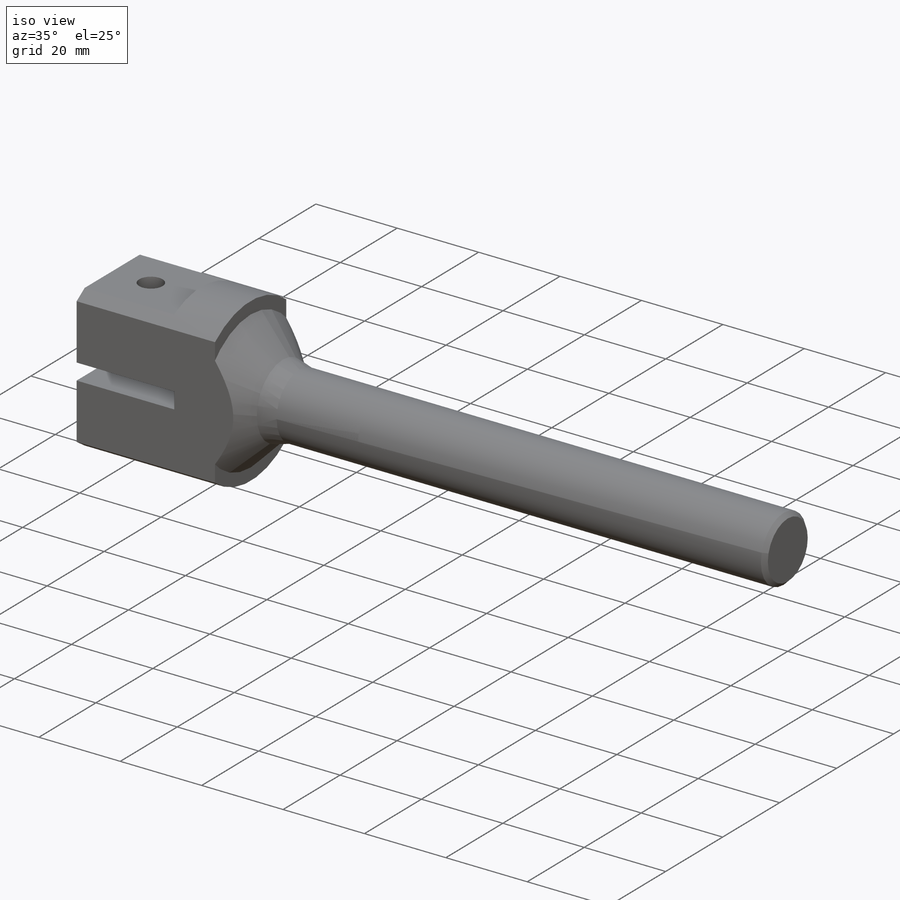
[diagram: iso view]
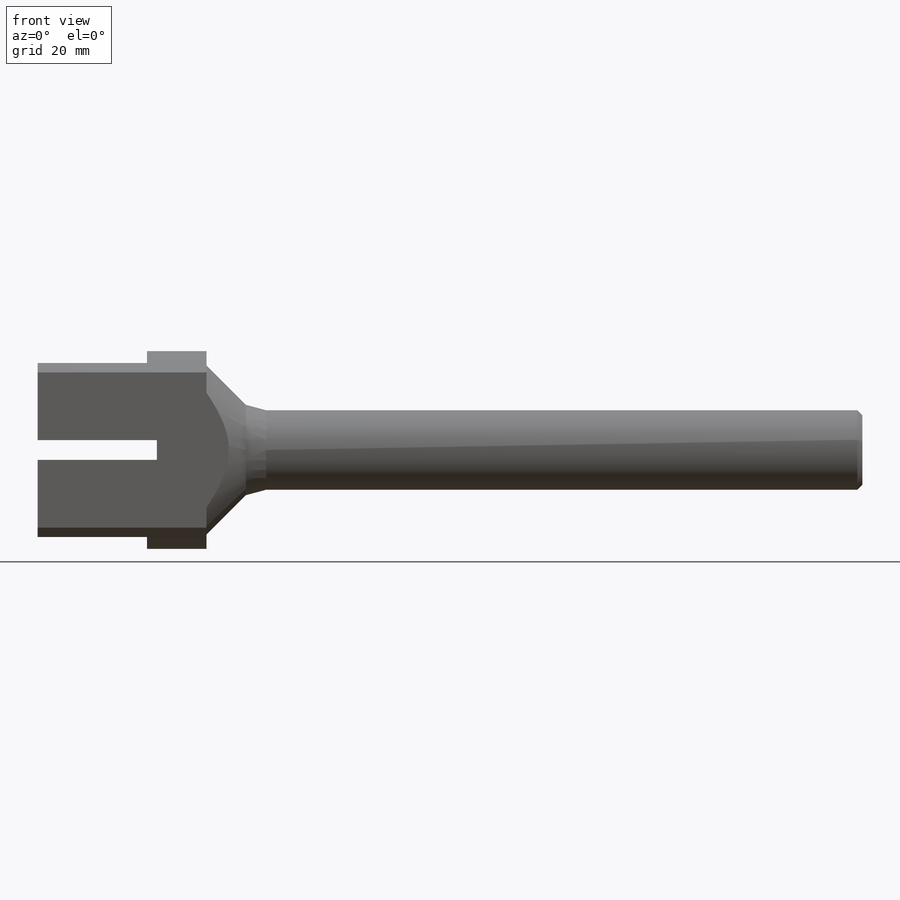
[diagram: front view]
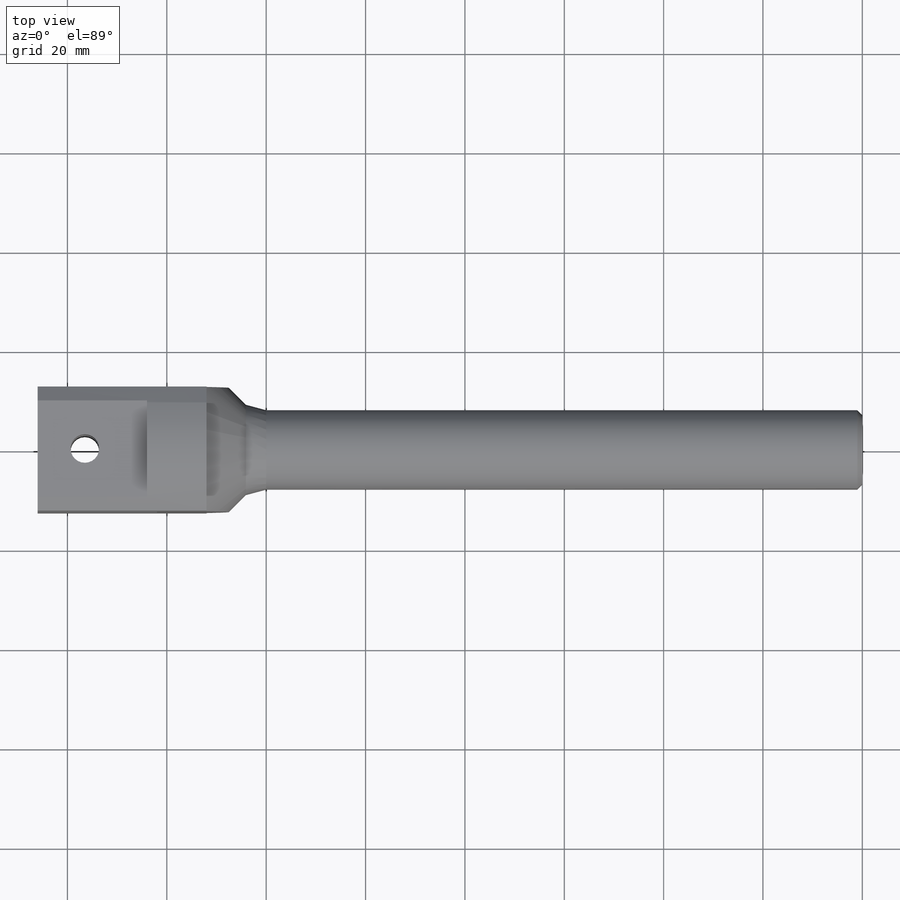
[diagram: top view]
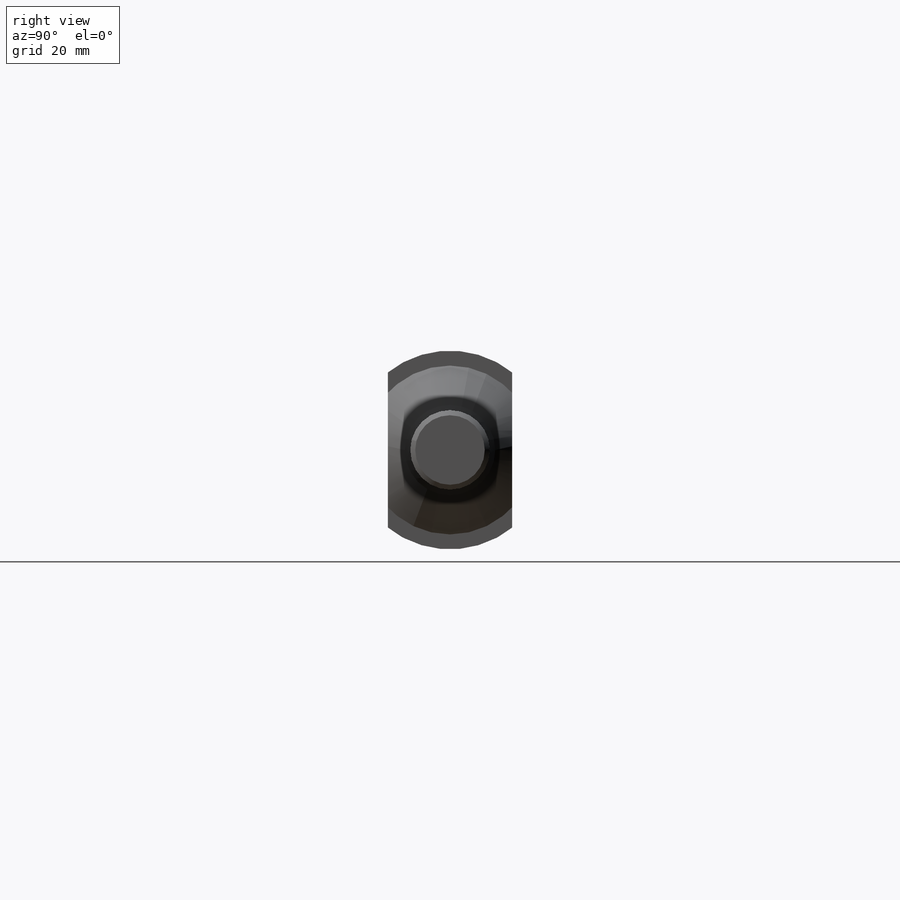
[diagram: right view]
SOLIDWORKS PART (.sldprt)
format: sldprt  version: not decoded by parser v0  size: 276,992 bytes
history: native  units: mm
features: plane x3, sketch x3, cut_extrude x2, material x1, revolve x1, thread x1, chamfer x1 (+9 scaffold rows collapsed)
feature tree (21):
  scaffold x9  (default folders/planes/origin — collapsed)
  material  "Material <nicht festgelegt>"
  plane  "Ebene vorne"
  plane  "Ebene oben"
  plane  "Ebene rechts"
  sketch  "Skizze1"  dims[c1.D1=10.0mm c1.D2=16.0mm c1.D3=40.0mm c1.D4=22.0mm c1.D5=166.0mm c2.D3=40.0mm c2.D6=35.0mm c2.D7=34.0mm c2.D8=34.0mm c2.D9=~12.818969mm c3.D9=135.0deg c3.D10=120.0mm c3.D11=115.0mm c4.D11=15.0deg c4.D12=~11.139144mm]
  revolve  "Rotation1"  [1 undecoded]
  thread  "Gewindedarstellung1"  Diameter=100mm  [1 undecoded]
  sketch  "Skizze2"  dims[c1.D1=~6.323309mm c1.D2=~34.62488mm c2.D1=~8.45288mm c2.D2=~41.291589mm c3.D1=~8.379968mm c3.D2=~47.850612mm c4.D1=22.0mm c4.D2=35.0mm c4.D3=4.0mm c4.D4=24.0mm]
  cut_extrude  "Schnitt-Linear austragen1"  Depth=100mm
  sketch  "Skizze3"  dims[c1.D1=~40.270831mm c1.D2=9.5mm c1.D3=~5.438689mm c1.D4=~31.195249mm c2.D3=~6.964156mm c2.D4=~43.310976mm c3.D3=25.0mm]
  cut_extrude  "Schnitt-Linear austragen2"  [1 undecoded]
  chamfer  "Fase1"  Distance=1mm Angle=45deg
decode coverage: 6 of 8 modeling features carry decoded parameters
note: ~ marks probable driven/reference dimensions
note: 3 parameter values undecoded
note: suppression state not decoded; provenance and decode notes live in map.json
